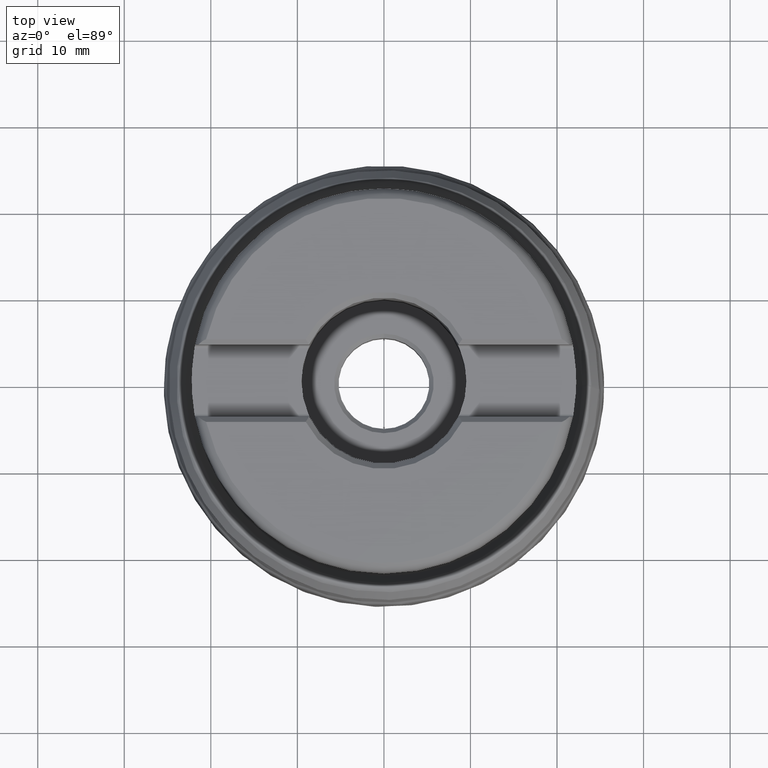
[diagram: clean part render]
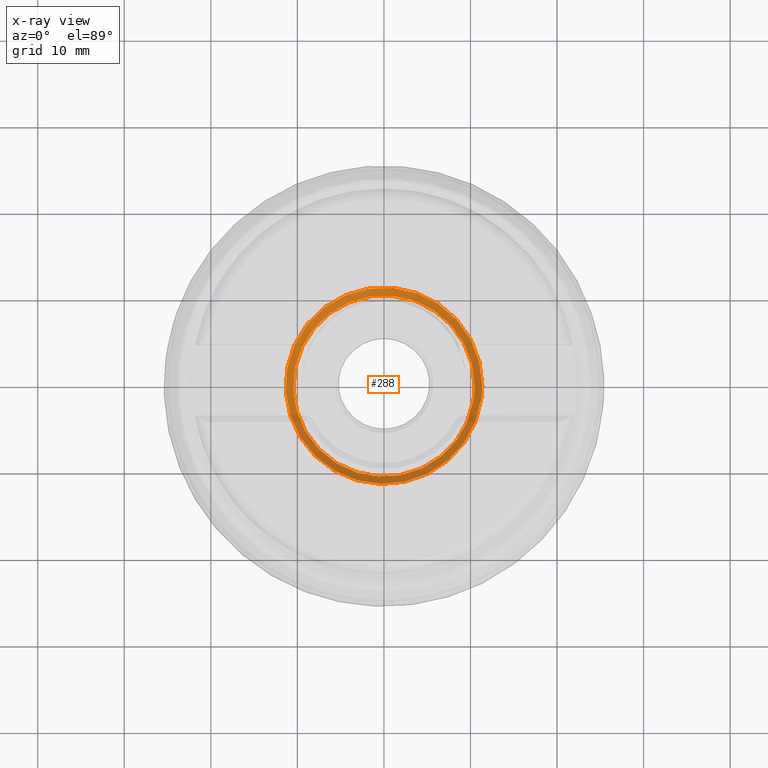
[diagram: x-ray — body ghosted, one internal face saturated and labeled with its STEP entity id]
A machine part, top view, then the same camera in x-ray: the body is ghosted and one INTERNAL B-rep face — a face not visible from any outside direction — is saturated and labeled: STEP entity #288.
In plain terms, the highlighted face is a SurfaceOfRevolution surface.
Its self-contained STEP definition (entity closure, byte-faithful):
#130=SURFACE_OF_REVOLUTION('',#328,#151);
#151=AXIS1_PLACEMENT('',#2445,#1500);
#288=ADVANCED_FACE('',(#446,#447),#130,.F.);
#328=LINE('',#2444,#355);
#355=VECTOR('',#1499,1.79261888964974);
#446=FACE_BOUND('',#566,.T.);
#447=FACE_BOUND('',#567,.T.);
#566=EDGE_LOOP('',(#794));
#567=EDGE_LOOP('',(#795));
#794=ORIENTED_EDGE('',*,*,#1004,.T.);
#795=ORIENTED_EDGE('',*,*,#1005,.F.);
#890=VERTEX_POINT('',#2435);
#891=VERTEX_POINT('',#2443);
#1004=EDGE_CURVE('',#890,#890,#1061,.T.);
#1005=EDGE_CURVE('',#891,#891,#1062,.T.);
#1061=CIRCLE('',#1236,11.3587236576181);
#1062=CIRCLE('',#1237,10.4714935580748);
#1236=AXIS2_PLACEMENT_3D('',#2434,#1494,#1495);
#1237=AXIS2_PLACEMENT_3D('',#2442,#1497,#1498);
#1494=DIRECTION('',(0.,0.,1.));
#1495=DIRECTION('',(1.,0.,0.));
#1497=DIRECTION('',(0.,0.,1.));
#1498=DIRECTION('',(1.,0.,0.));
#1499=DIRECTION('',(0.521103507103216,0.146715029869396,0.840788817061187));
#1500=DIRECTION('',(0.,0.,1.));
#2434=CARTESIAN_POINT('',(0.,0.,8.99379476644489));
#2435=CARTESIAN_POINT('',(11.3587236576181,0.,8.99379476644489));
#2442=CARTESIAN_POINT('',(0.,0.,7.48658083661511));
#2443=CARTESIAN_POINT('',(10.4714935580748,0.,7.48658083661511));
#2444=CARTESIAN_POINT('',(10.3358631436884,-1.67991381080826,7.48658083661511));
#2445=CARTESIAN_POINT('',(0.,0.,0.));